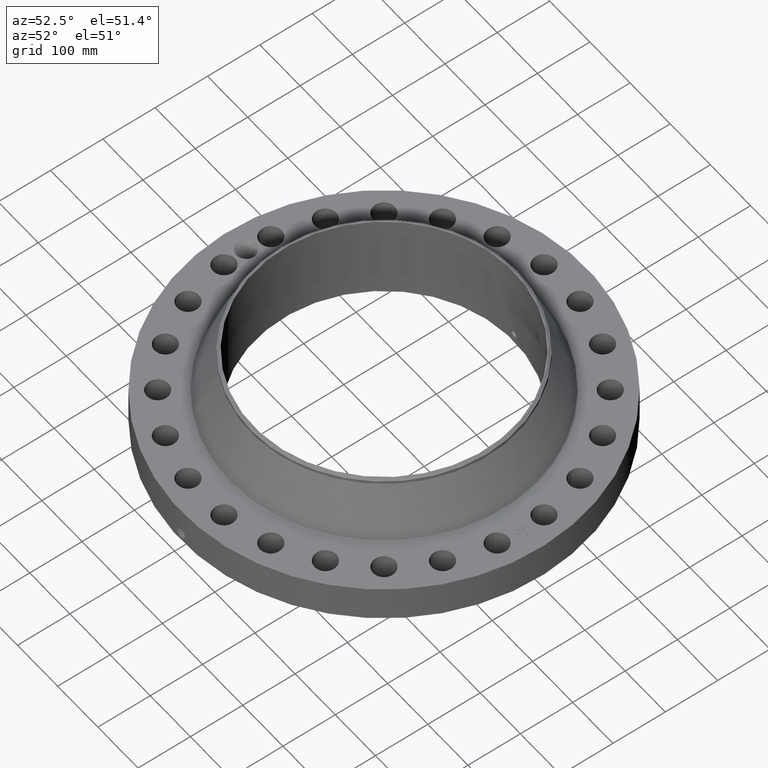
[diagram: clean part render]
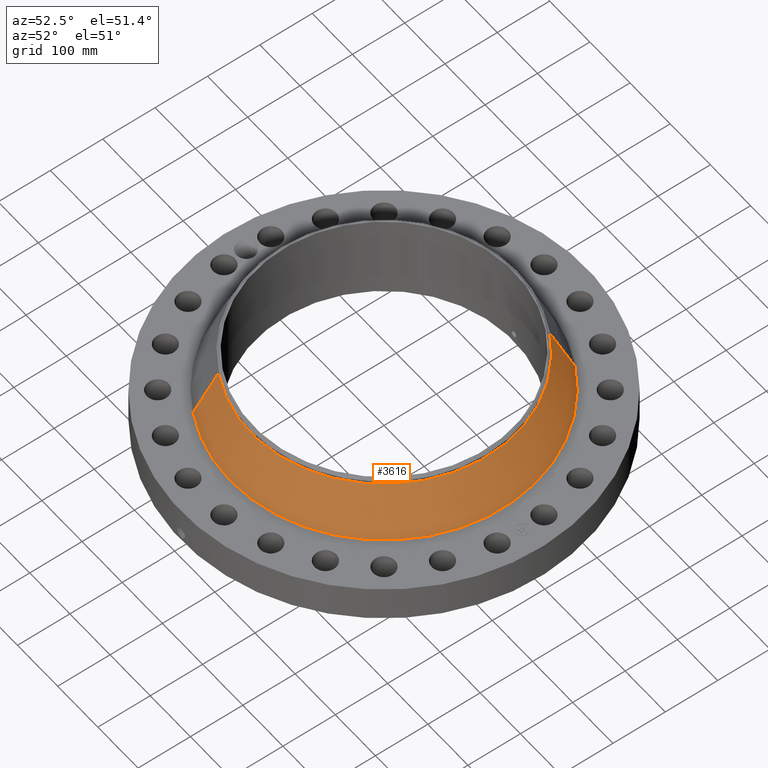
[diagram: same view with one face highlighted and labeled with its STEP entity id]
A machine part, auxiliary view. The second image highlights one B-rep face of the part: STEP entity #3616.
In plain terms, the highlighted conical surface has half-angle 24.009 deg.
Its self-contained STEP definition (entity closure, byte-faithful):
#2882=AXIS2_PLACEMENT_3D('Circle Axis2P3D',#2880,#2881,$) ;
#3589=AXIS2_PLACEMENT_3D('Cone Axis2P3D',#3586,#3587,#3588) ;
#3600=AXIS2_PLACEMENT_3D('Circle Axis2P3D',#3598,#3599,$) ;
#2877=CARTESIAN_POINT('Vertex',(5.52696040301,10.1170331561,3.07117473894)) ;
#2880=CARTESIAN_POINT('Axis2P3D Location',(0.,0.,3.07117473894)) ;
#2884=CARTESIAN_POINT('Vertex',(-5.52696040301,-10.1170331561,3.07117473894)) ;
#3586=CARTESIAN_POINT('Axis2P3D Location',(0.,0.,6.50236722846)) ;
#3591=CARTESIAN_POINT('Line Origine',(5.16060789453,9.44642938752,4.7867709837)) ;
#3595=CARTESIAN_POINT('Vertex',(4.79425538606,8.77582561894,6.50236722846)) ;
#3598=CARTESIAN_POINT('Axis2P3D Location',(0.,0.,6.50236722846)) ;
#3602=CARTESIAN_POINT('Vertex',(-4.79425538606,-8.77582561894,6.50236722846)) ;
#3605=CARTESIAN_POINT('Line Origine',(-5.16060789453,-9.44642938752,4.7867709837)) ;
#2881=DIRECTION('Axis2P3D Direction',(0.,0.,-0.0393700787402)) ;
#3587=DIRECTION('Axis2P3D Direction',(0.,0.,-0.0393700787402)) ;
#3588=DIRECTION('Axis2P3D XDirection',(-0.0188750212049,-0.0345504945626,0.)) ;
#3592=DIRECTION('Vector Direction',(0.00767981531761,0.0140578076439,-0.035963892739)) ;
#3599=DIRECTION('Axis2P3D Direction',(0.,0.,-0.0393700787402)) ;
#3606=DIRECTION('Vector Direction',(-0.00767981531761,-0.0140578076439,-0.035963892739)) ;
#3593=VECTOR('Line Direction',#3592,0.0393700787402) ;
#3607=VECTOR('Line Direction',#3606,0.0393700787402) ;
#3611=ORIENTED_EDGE('',*,*,#2886,.F.) ;
#3612=ORIENTED_EDGE('',*,*,#3597,.T.) ;
#3613=ORIENTED_EDGE('',*,*,#3604,.T.) ;
#3614=ORIENTED_EDGE('',*,*,#3609,.F.) ;
#3616=ADVANCED_FACE('PartBody',(#3615),#3590,.T.) ;
#2883=CIRCLE('generated circle',#2882,11.5282978439) ;
#3601=CIRCLE('generated circle',#3600,10.) ;
#3590=CONICAL_SURFACE('Cone',#3589,10.,0.419032857768) ;
#2886=EDGE_CURVE('',#2878,#2885,#2883,.T.) ;
#3597=EDGE_CURVE('',#2878,#3596,#3594,.F.) ;
#3604=EDGE_CURVE('',#3596,#3603,#3601,.T.) ;
#3609=EDGE_CURVE('',#2885,#3603,#3608,.F.) ;
#3610=EDGE_LOOP('',(#3611,#3612,#3613,#3614)) ;
#3615=FACE_OUTER_BOUND('',#3610,.T.) ;
#3594=LINE('Line',#3591,#3593) ;
#3608=LINE('Line',#3605,#3607) ;
#2878=VERTEX_POINT('',#2877) ;
#2885=VERTEX_POINT('',#2884) ;
#3596=VERTEX_POINT('',#3595) ;
#3603=VERTEX_POINT('',#3602) ;